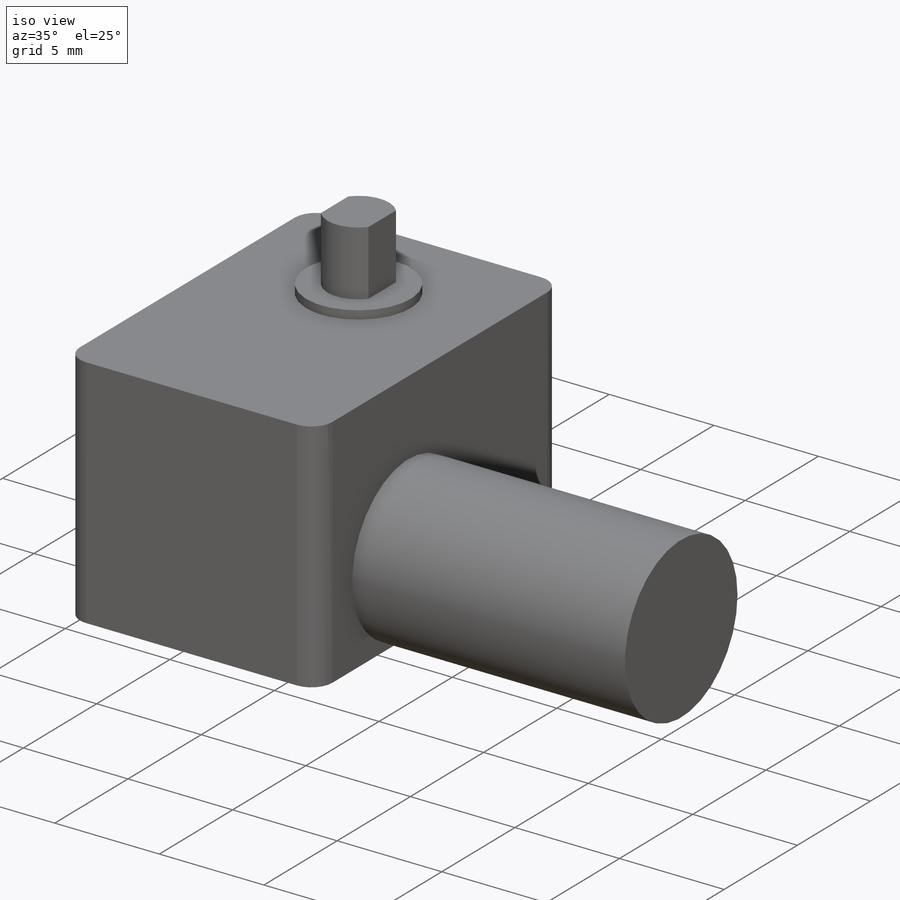
[diagram: iso view]
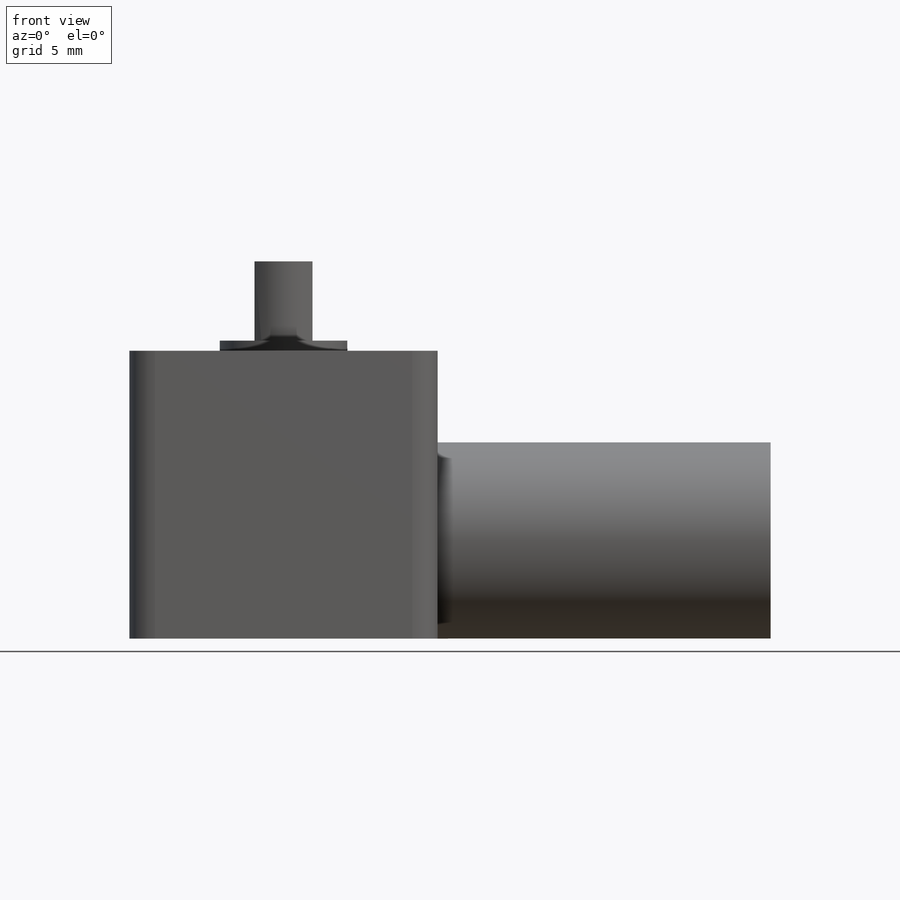
[diagram: front view]
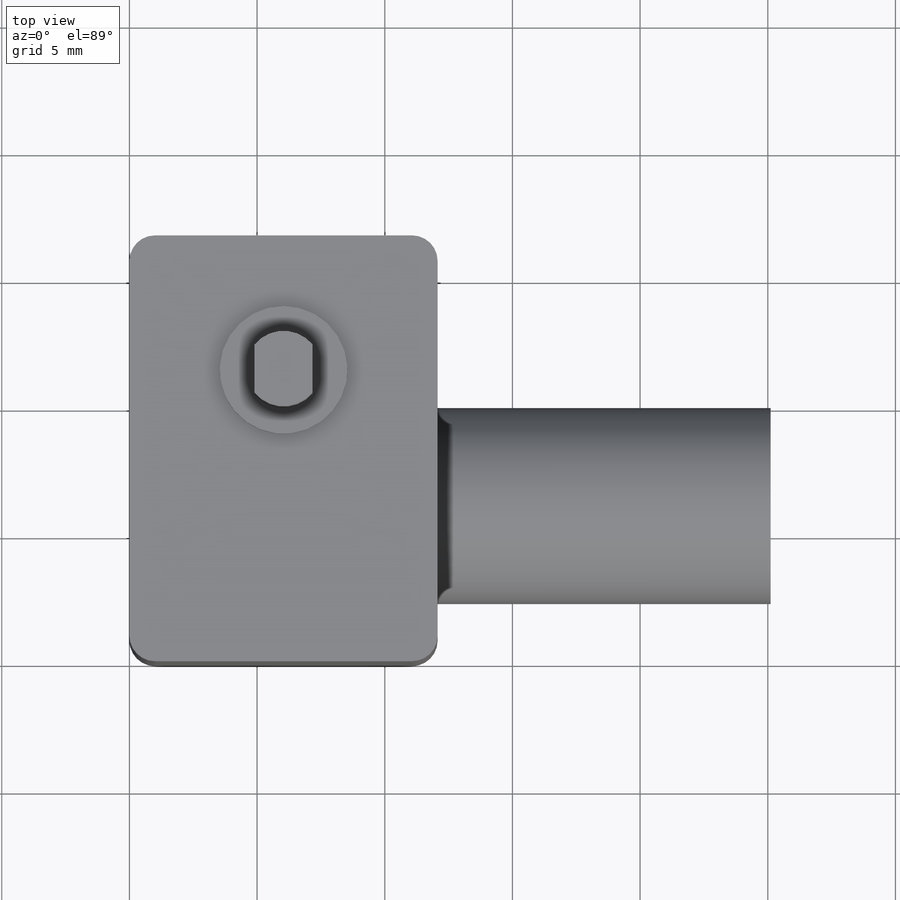
[diagram: top view]
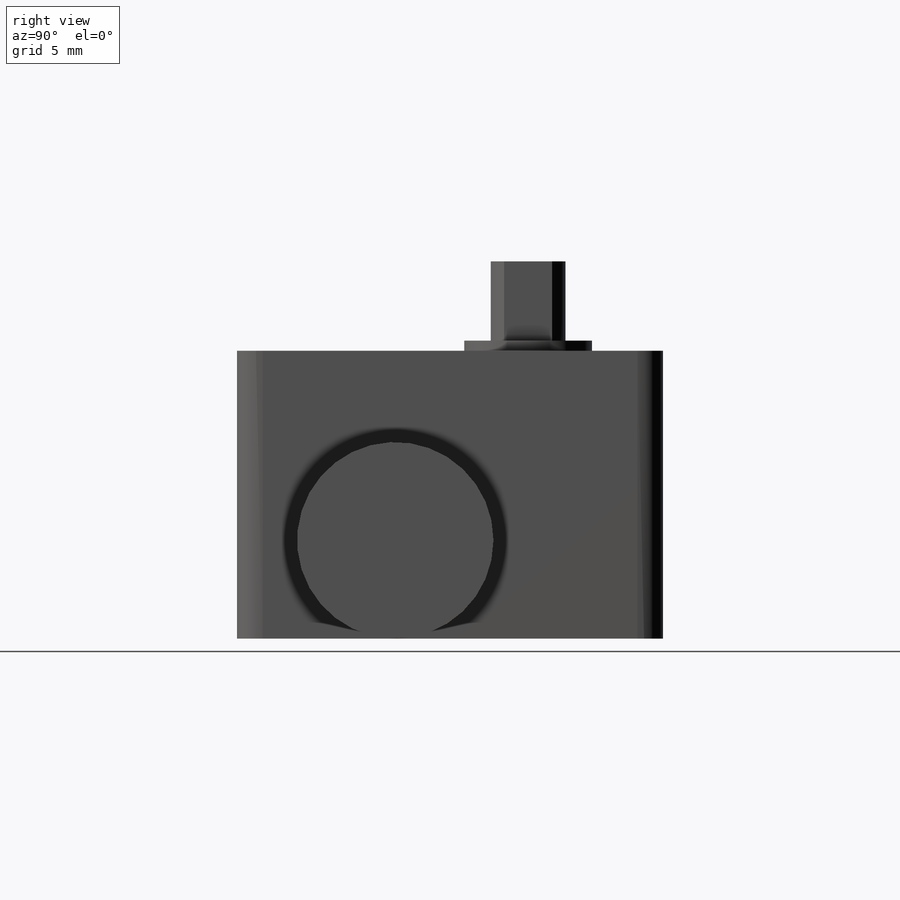
[diagram: right view]
SOLIDWORKS PART (.sldprt)
format: sldprt  version: not decoded by parser v0  size: 247,808 bytes
history: native  units: mm
features: sketch x5, extrude x4, material x1, revolve x1, fillet x1 (+13 scaffold rows collapsed)
feature tree (25):
  scaffold x13  (default folders/planes/origin — collapsed)
  material  "Delrin 2700 NC010, Low Viscosity Acetal Copolymer (SS)"
  sketch  "Sketch2"  dims[c1.D7=5.0mm c1.D8=2.95mm c1.D1=12.07mm c1.D2=16.68mm c1.D3=2.35mm c1.D4=7.69mm c1.D5=25.11mm c1.D6=11.4mm c1.D9=1.88mm c2.D4=3.845mm]
  revolve  "Revolve1"  Angle=360deg
  extrude  "Boss-Extrude1"  [1 undecoded]
  sketch  "Sketch2<5>"  dims[D1=3.845mm]
  extrude  "Boss-Extrude2"  [1 undecoded]
  sketch  "Sketch2<6>"  dims[D1=7.425mm]
  extrude  "Boss-Extrude3"  [1 undecoded]
  sketch  "Sketch2<7>"  dims[D1=7.825mm]
  extrude  "Boss-Extrude4"  [1 undecoded]
  sketch  "Sketch2<8>"  dims[D1=10.925mm]
  fillet  "Fillet1"  Radius=1mm
decode coverage: 7 of 11 modeling features carry decoded parameters
note: 4 parameter values undecoded
summary: no parameter record found for 4 features
note: suppression state not decoded; provenance and decode notes live in map.json
